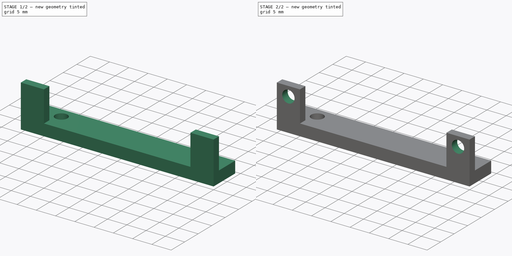
[diagram: build sequence overview — one tinted view per stage of 2, left to right]
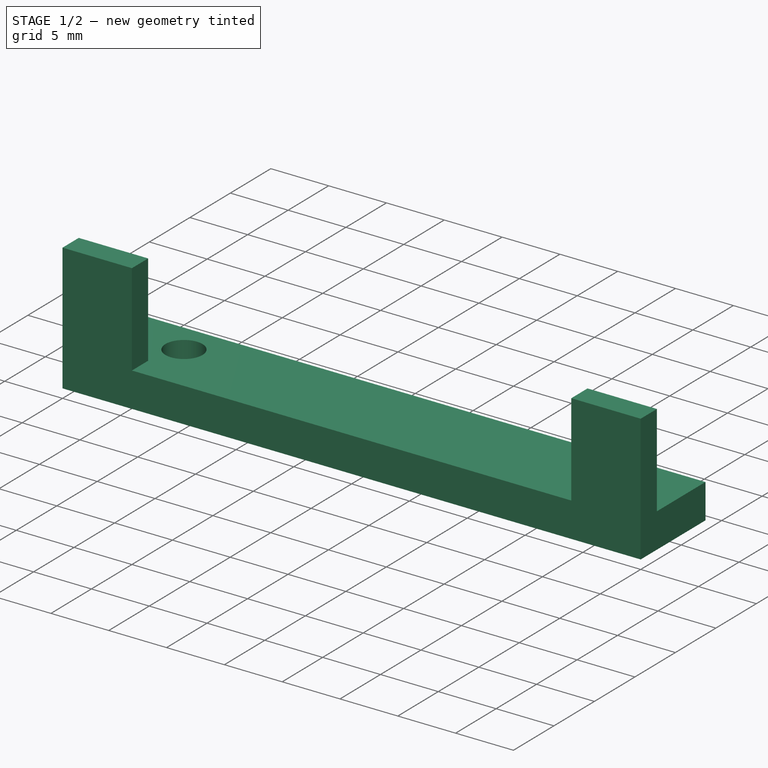
[diagram: stage 1 of 2 — iso view after this stage's code; geometry added in this stage tinted green]
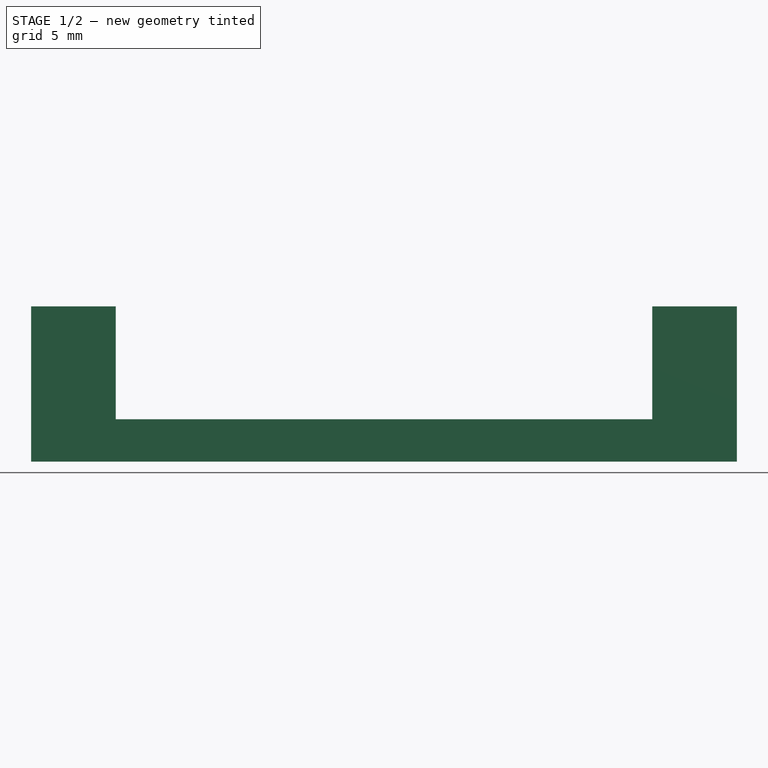
[diagram: stage 1 of 2 — front view after this stage's code; geometry added in this stage tinted green]
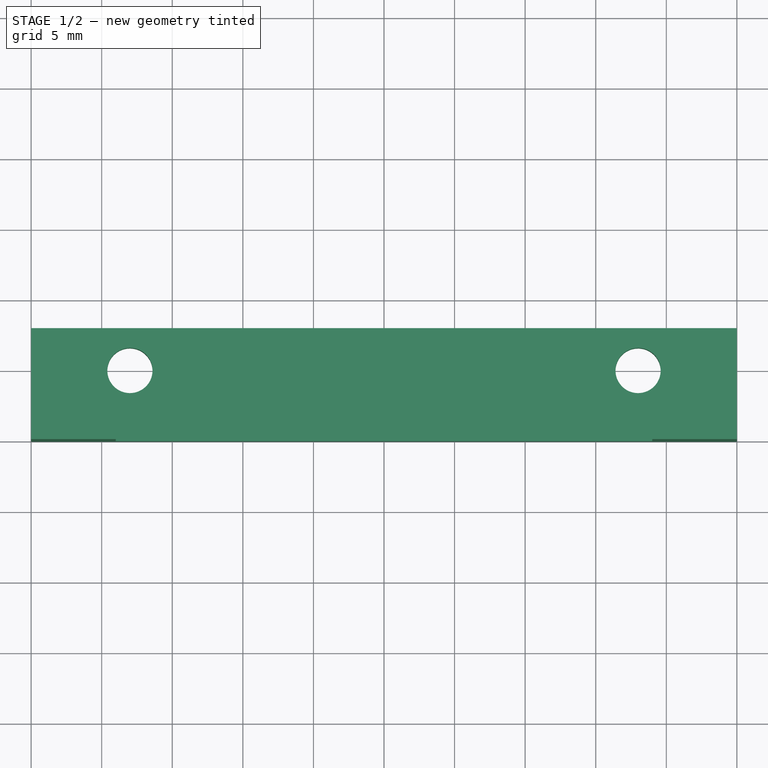
[diagram: stage 1 of 2 — top view after this stage's code; geometry added in this stage tinted green]
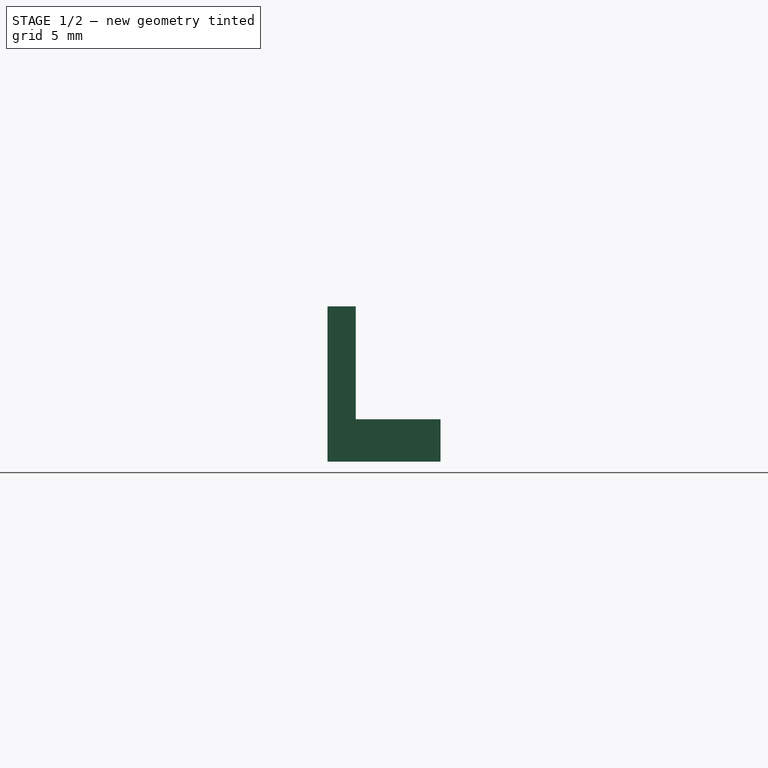
[diagram: stage 1 of 2 — right view after this stage's code; geometry added in this stage tinted green]
FCSTD DOCUMENT  (FreeCAD 0.21R33668 +26 (Git))
Label: audio_holder_top
License: All rights reserved
LicenseURL: https://en.wikipedia.org/wiki/All_rights_reserved
objects: Sketcher::SketchObject×3, PartDesign::Pad×2, PartDesign::Pocket×1, PartDesign::Body×1
note: 10 computed .brp shape members not serialized (recipe doc carries the construction recipe); baked Part::Feature solids carry a one-line shape summary decoded from their .brp

FEATURE [Sketcher::SketchObject] Sketch
  FullyConstrained = false
  MapMode = 5
  Support = -> [XY_Plane]
  sketch-geometry (12):
    g0: LineSegment StartX=0 StartY=0 StartZ=0 EndX=-50 EndY=0 EndZ=0
    g1: LineSegment StartX=-50 StartY=0 StartZ=0 EndX=-50 EndY=8 EndZ=0
    g2: LineSegment StartX=-50 StartY=8 StartZ=0 EndX=0 EndY=8 EndZ=0
    g3: LineSegment StartX=0 StartY=8 StartZ=0 EndX=0 EndY=0 EndZ=0
    g4: GeomPoint X=-25 Y=0 Z=0
    g5: LineSegment StartX=-25 StartY=0 StartZ=0 EndX=-25 EndY=5 EndZ=0
    g6: Circle CenterX=-43 CenterY=5 CenterZ=0 NormalX=0 NormalY=0 NormalZ=1 AngleXU=0 Radius=1.6
    g7: Circle CenterX=-7 CenterY=5 CenterZ=0 NormalX=0 NormalY=0 NormalZ=1 AngleXU=0 Radius=1.6
    g8: LineSegment StartX=-43 StartY=5 StartZ=0 EndX=-25 EndY=5 EndZ=0
    g9: LineSegment StartX=-7 StartY=5 StartZ=0 EndX=-25 EndY=5 EndZ=0
    g10: GeomPoint X=-44.142 Y=6.12063 Z=0
    g11: GeomPoint X=-8.3241 Y=5.8982 Z=0
  constraints (28):
    c: Coincident(g0,g1)
    c: Coincident(g1,g2)
    c: Coincident(g2,g3)
    c: Coincident(g3,g0)
    c: Horizontal(g0)
    c: Horizontal(g2)
    c: Vertical(g1)
    c: Vertical(g3)
    c: Coincident(g0,g-1)
    c: Distance(g2) = 50
    c: Distance(g1) = 8
    c: PointOnObject(g4,g0)
    c: Distance(g4,g0) = 25
    c: Coincident(g5,g4)
    c: Vertical(g5)
    c: Distance(g5) = 5
    c: Coincident(g8,g6)
    c: Coincident(g8,g5)
    c: Horizontal(g8)
    c: Coincident(g9,g7)
    c: Coincident(g9,g8)
    c: Horizontal(g9)
    c: Distance(g8) = 18
    c: Distance(g9) = 18
    c: PointOnObject(g10,g6)
    c: PointOnObject(g11,g7)
    c: Distance(g10,g6) = 1.6
    c: Distance(g11,g7) = 1.6
FEATURE [PartDesign::Pad] Pad
  Direction = (0,0,1)
  Length = 3
  Length2 = 10
  Profile = -> Sketch
  ReferenceAxis = -> Sketch [N_Axis]
  Type = 0
FEATURE [Sketcher::SketchObject] Sketch001
  FullyConstrained = true
  MapMode = 5
  Placement = pos=(0,0,3) rot=(0,0,1;0rad)
  Support = -> [Pad]
  sketch-geometry (12):
    g0: GeomPoint X=-25 Y=0 Z=0
    g1: LineSegment StartX=-25 StartY=0 StartZ=0 EndX=-25 EndY=2 EndZ=0
    g2: LineSegment StartX=-25 StartY=2 StartZ=0 EndX=-44 EndY=2 EndZ=0
    g3: LineSegment StartX=-25 StartY=2 StartZ=0 EndX=-6 EndY=2 EndZ=0
    g4: LineSegment StartX=-44 StartY=2 StartZ=0 EndX=-50 EndY=2 EndZ=0
    g5: LineSegment StartX=-50 StartY=2 StartZ=0 EndX=-50 EndY=0 EndZ=0
    g6: LineSegment StartX=-50 StartY=0 StartZ=0 EndX=-44 EndY=0 EndZ=0
    g7: LineSegment StartX=-44 StartY=0 StartZ=0 EndX=-44 EndY=2 EndZ=0
    g8: LineSegment StartX=-6 StartY=2 StartZ=0 EndX=1.8e-15 EndY=2 EndZ=0
    g9: LineSegment StartX=1.6e-15 StartY=2 StartZ=0 EndX=1.6e-15 EndY=0 EndZ=0
    g10: LineSegment StartX=1.6e-15 StartY=0 StartZ=0 EndX=-6 EndY=0 EndZ=0
    g11: LineSegment StartX=-6 StartY=0 StartZ=0 EndX=-6 EndY=2 EndZ=0
  constraints (33):
    c: PointOnObject(g0,g-1)
    c: Distance(g-1,g0) = 25
    c: Coincident(g1,g0)
    c: Vertical(g1)
    c: Distance(g1) = 2
    c: Coincident(g2,g1)
    c: Horizontal(g2)
    c: Coincident(g3,g2)
    c: Horizontal(g3)
    c: Distance(g2) = 19
    c: Distance(g3) = 19
    c: Coincident(g4,g5)
    c: Coincident(g5,g6)
    c: Coincident(g6,g7)
    c: Coincident(g7,g4)
    c: Horizontal(g4)
    c: Horizontal(g6)
    c: Vertical(g5)
    c: Vertical(g7)
    c: Coincident(g4,g2)
    c: Coincident(g8,g9)
    c: Coincident(g9,g10)
    c: Coincident(g10,g11)
    c: Coincident(g11,g8)
    c: Horizontal(g8)
    c: Horizontal(g10)
    c: Vertical(g9)
    c: Vertical(g11)
    c: Coincident(g8,g3)
    c: PointOnObject(g9,g-1)
    c: Distance(g4) = 6
    c: Distance(g5) = 2
    c: Distance(g8) = 6
FEATURE [PartDesign::Pad] Pad001
  BaseFeature = -> Pad
  Direction = (0,0,1)
  Length = 8
  Length2 = 10
  Profile = -> Sketch001
  ReferenceAxis = -> Sketch001 [N_Axis]
  Type = 0
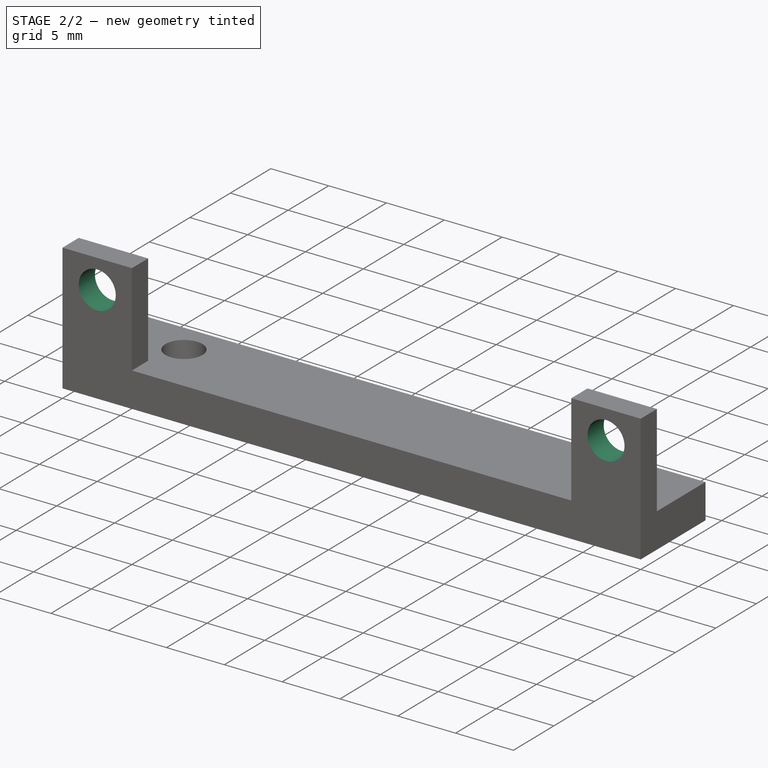
[diagram: stage 2 of 2 — iso view after this stage's code; geometry added in this stage tinted green]
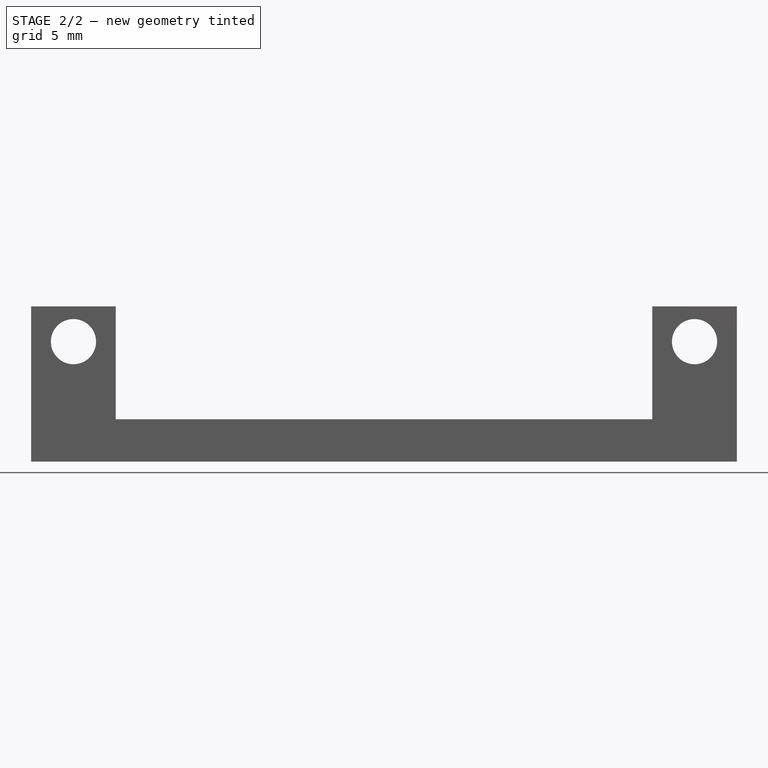
[diagram: stage 2 of 2 — front view after this stage's code; geometry added in this stage tinted green]
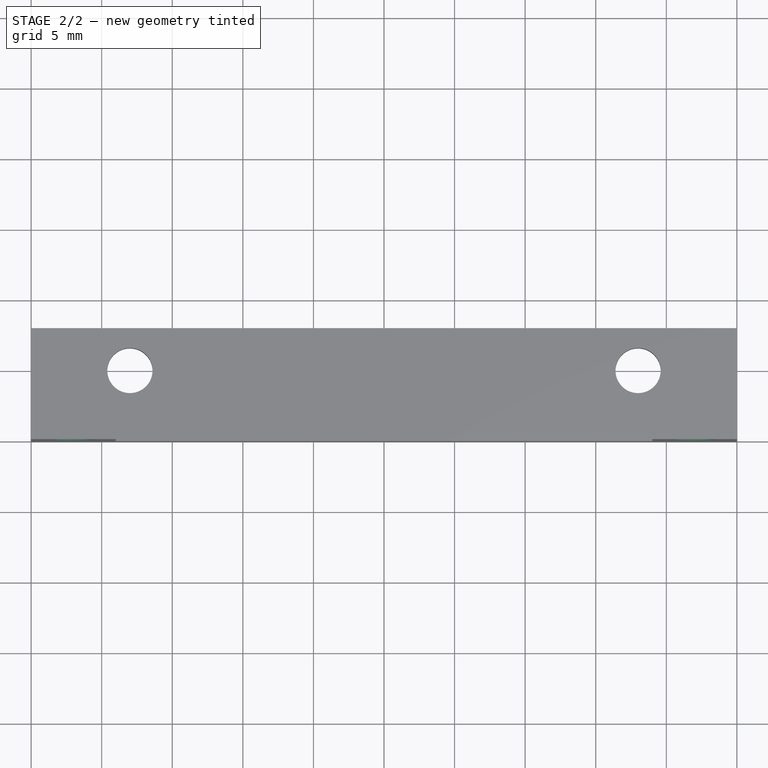
[diagram: stage 2 of 2 — top view after this stage's code; geometry added in this stage tinted green]
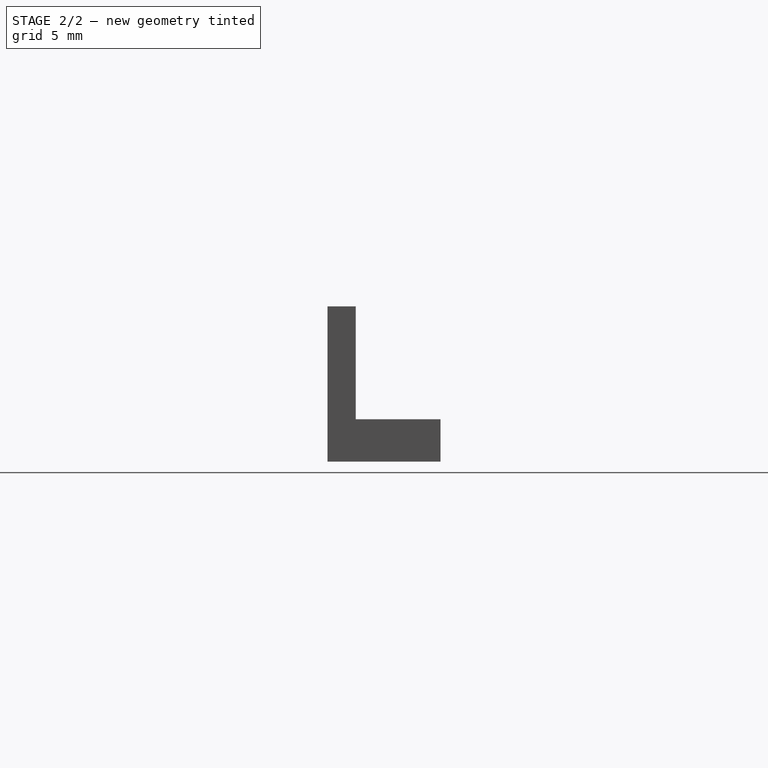
[diagram: stage 2 of 2 — right view after this stage's code; geometry added in this stage tinted green]
FEATURE [Sketcher::SketchObject] Sketch002
  FullyConstrained = false
  MapMode = 5
  Placement = pos=(0,0,0) rot=(1,0,0;1.5708rad)
  Support = -> [Pad001]
  sketch-geometry (8):
    g0: GeomPoint X=-25 Y=0 Z=0
    g1: LineSegment StartX=-25 StartY=0 StartZ=0 EndX=-25 EndY=8.5 EndZ=0
    g2: LineSegment StartX=-25 StartY=8.5 StartZ=0 EndX=-47 EndY=8.5 EndZ=0
    g3: LineSegment StartX=-25 StartY=8.5 StartZ=0 EndX=-3 EndY=8.5 EndZ=0
    g4: Circle CenterX=-47 CenterY=8.5 CenterZ=0 NormalX=0 NormalY=0 NormalZ=1 AngleXU=0 Radius=1.6
    g5: Circle CenterX=-3 CenterY=8.5 CenterZ=0 NormalX=0 NormalY=0 NormalZ=1 AngleXU=0 Radius=1.6
    g6: GeomPoint X=-47.7956 Y=7.11184 Z=0
    g7: GeomPoint X=-2.472 Y=10.0104 Z=0
  constraints (17):
    c: PointOnObject(g0,g-1)
    c: Distance(g-1,g0) = 25
    c: Coincident(g1,g0)
    c: Vertical(g1)
    c: Distance(g1) = 8.5
    c: Coincident(g2,g1)
    c: Horizontal(g2)
    c: Coincident(g3,g2)
    c: Horizontal(g3)
    c: Coincident(g4,g2)
    c: Coincident(g5,g3)
    c: PointOnObject(g6,g4)
    c: PointOnObject(g7,g5)
    c: Distance(g2) = 22
    c: Distance(g3) = 22
    c: Distance(g6,g4) = 1.6
    c: Distance(g7,g5) = 1.6
FEATURE [PartDesign::Pocket] Pocket
  BaseFeature = -> Pad001
  Direction = (0,1,-2e-16)
  Length = 5
  Length2 = 5
  Profile = -> Sketch002
  ReferenceAxis = -> Sketch002 [N_Axis]
  Type = 0
FEATURE [PartDesign::Body] Body  label="Körper"
  Group = -> [Sketch,Pad,Sketch001,Pad001,Sketch002,Pocket]
  Origin = -> Origin
  Tip = -> Pocket
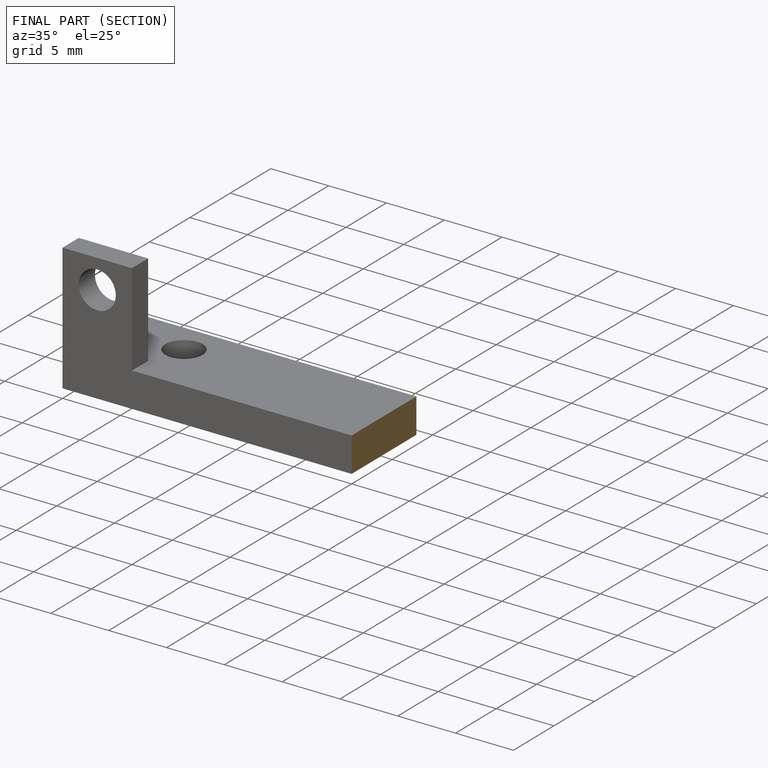
[diagram: finished part — half-section view (interior)]
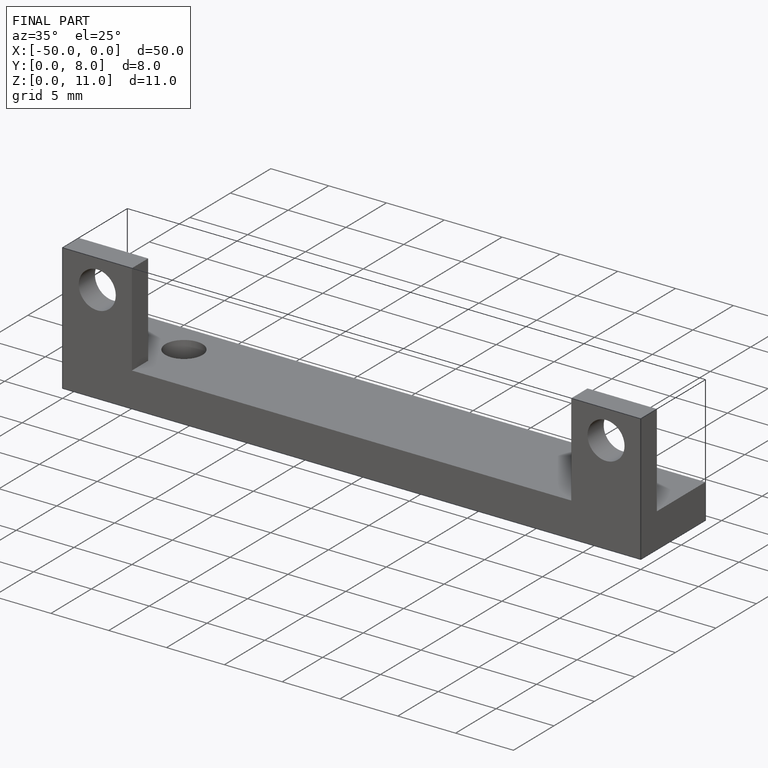
[diagram: finished part — iso view with bounding-box wireframe]
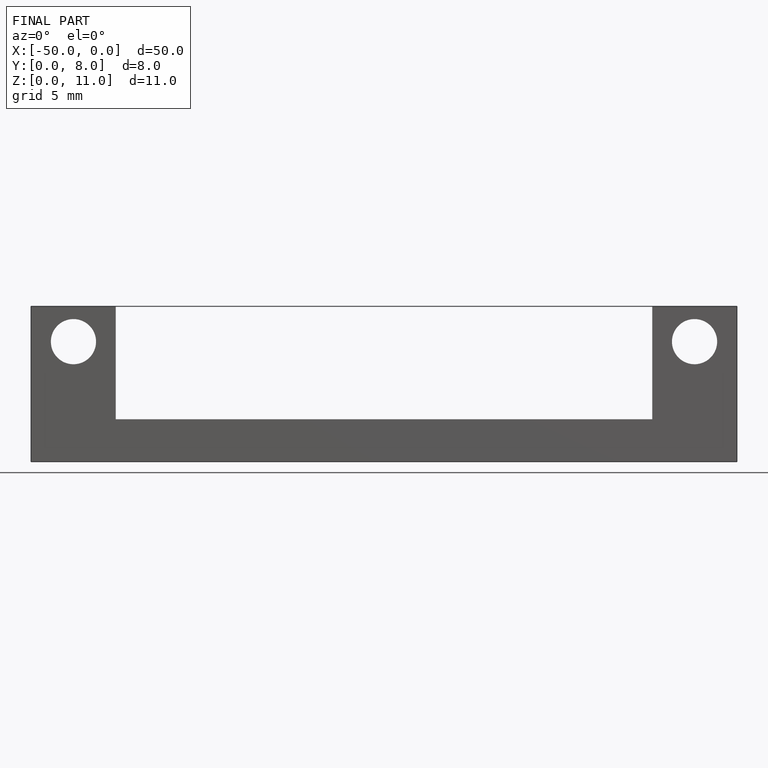
[diagram: finished part — front view with bounding-box wireframe]
